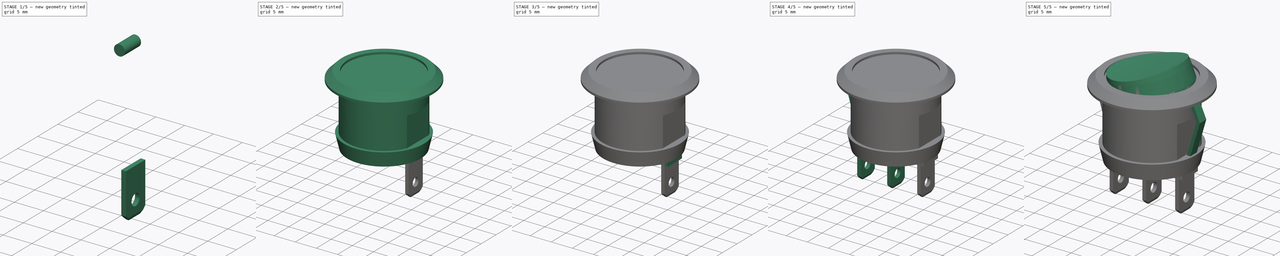
[diagram: build sequence overview — one tinted view per stage of 5, left to right]
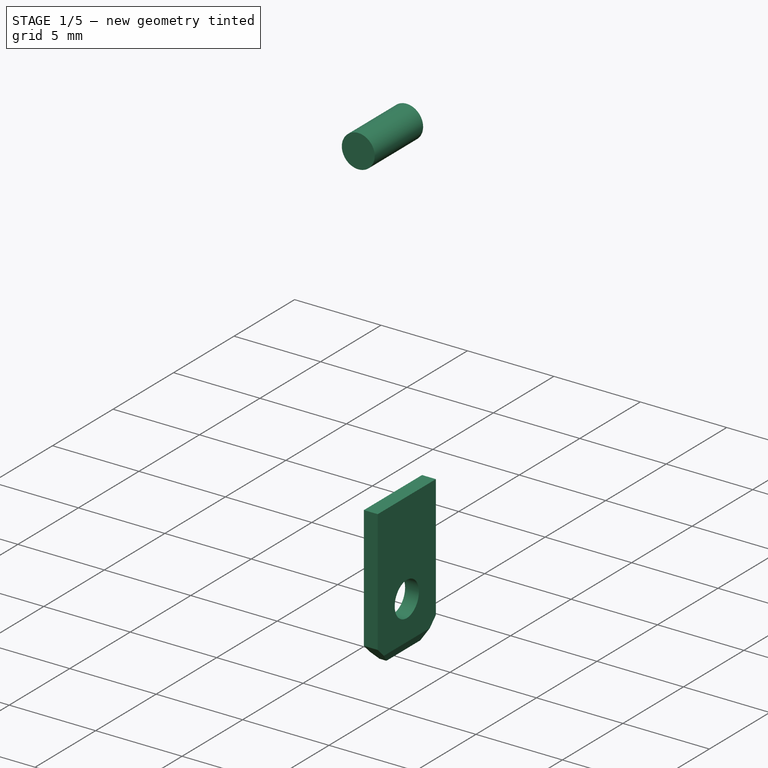
[diagram: stage 1 of 5 — iso view after this stage's code; geometry added in this stage tinted green]
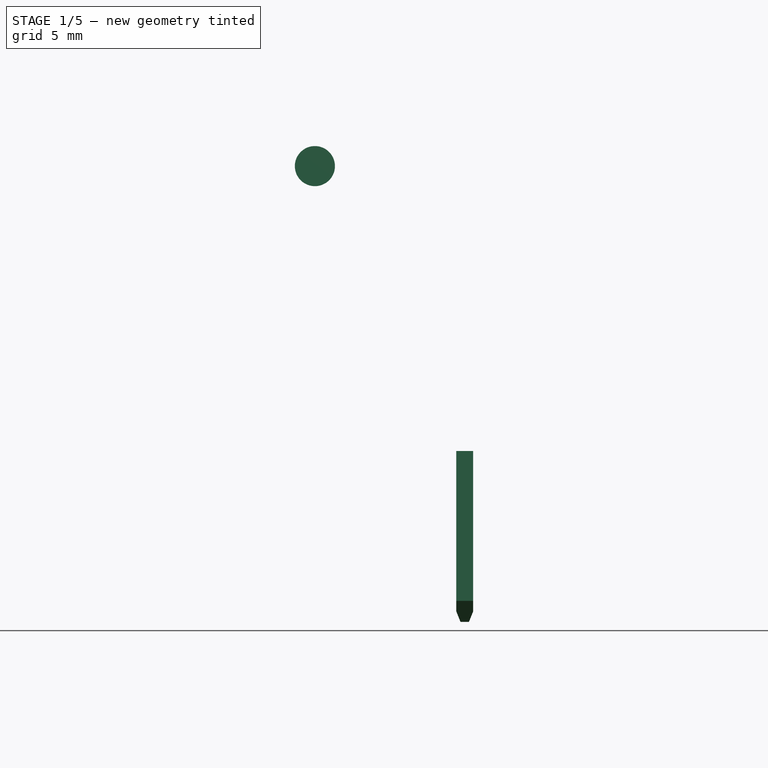
[diagram: stage 1 of 5 — front view after this stage's code; geometry added in this stage tinted green]
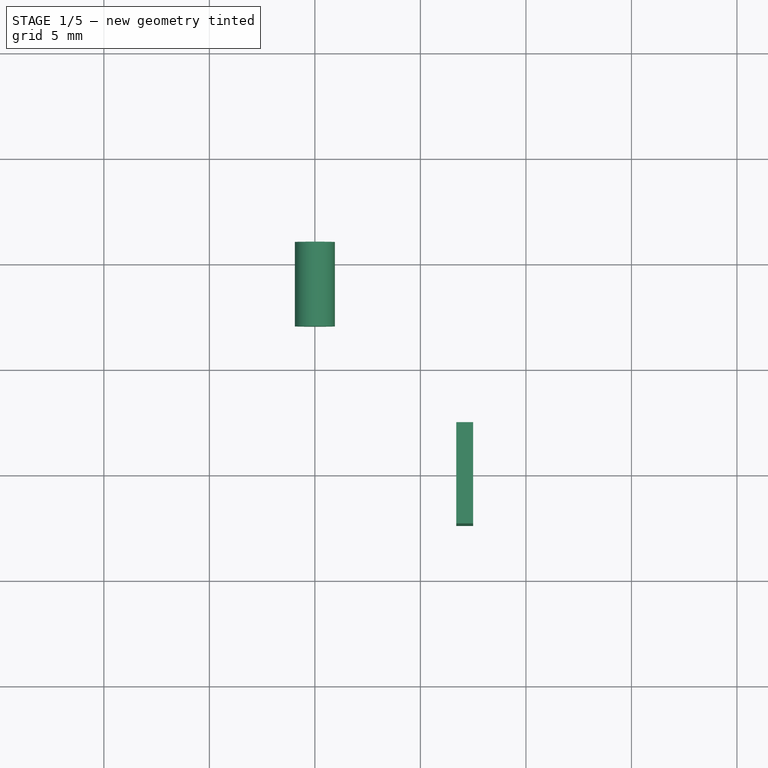
[diagram: stage 1 of 5 — top view after this stage's code; geometry added in this stage tinted green]
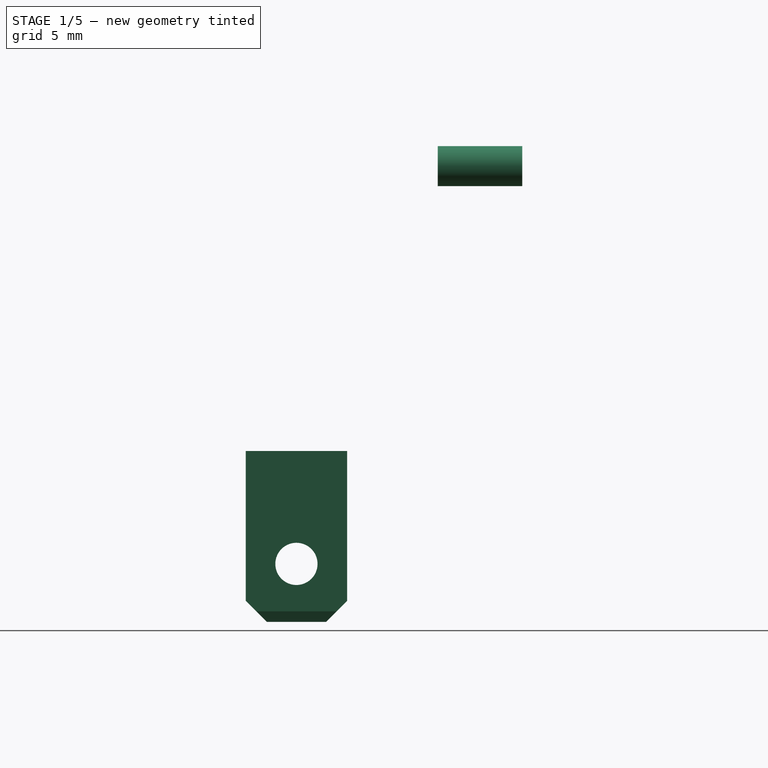
[diagram: stage 1 of 5 — right view after this stage's code; geometry added in this stage tinted green]
FCSTD DOCUMENT  (FreeCAD 0.16R6706 (Git))
Label: button
License: All rights reserved
LicenseURL: http://en.wikipedia.org/wiki/All_rights_reserved
objects: Sketcher::SketchObject×8, Part::FeaturePython×8, PartDesign::Pad×5, Image::ImagePlane×3, Part::Cut×3, PartDesign::Revolution×2, App::DocumentObjectGroup×2, Part::MultiFuse×2, Part::Feature×2, PartDesign::Pocket×1, Part::Mirroring×1, PartDesign::Chamfer×1, Part::Box×1, Part::Cylinder×1, Part::Compound×1
note: 44 computed .brp shape members not serialized (recipe doc carries the construction recipe); baked Part::Feature solids carry a one-line shape summary decoded from their .brp

FEATURE [Sketcher::SketchObject] Sketch004
  Placement = pos=(0,0,0) rot=(-1,0,0;4.71239rad)
  sketch-geometry (6):
    g0: LineSegment StartX=0.2 StartY=0 StartZ=0 EndX=0.4 EndY=0.5 EndZ=0
    g1: LineSegment StartX=0.4 StartY=0.5 StartZ=0 EndX=0.4 EndY=8.1 EndZ=0
    g2: LineSegment StartX=-0.4 StartY=8.1 StartZ=0 EndX=-0.4 EndY=0.5 EndZ=0
    g3: LineSegment StartX=0.2 StartY=0 StartZ=0 EndX=-0.2 EndY=0 EndZ=0
    g4: LineSegment StartX=-0.2 StartY=0 StartZ=0 EndX=-0.4 EndY=0.5 EndZ=0
    g5: LineSegment StartX=-0.4 StartY=8.1 StartZ=0 EndX=0.4 EndY=8.1 EndZ=0
  constraints (17):
    c: PointOnObject(g0,g-1)
    c: Coincident(g0,g1)
    c: Vertical(g1)
    c: Vertical(g2)
    c: Coincident(g0,g3)
    c: Horizontal(g3)
    c: Coincident(g3,g4)
    c: Coincident(g4,g2)
    c: Symmetric(g2,g1,g-2)
    c: Symmetric(g2,g0,g-2)
    c: Symmetric(g3,g0,g-2)
    c: DistanceX(g2,g0) = 0.8
    c: DistanceX(g3,g3) = 0.4
    c: DistanceY(g3,g2) = 0.5
    c: Coincident(g5,g2)
    c: Coincident(g5,g1)
    c: DistanceY(g2) = 8.1
FEATURE [Image::ImagePlane] ImagePlane002
  Placement = pos=(0.15,0,14) rot=(1,0,0;1.5708rad)
  XSize = 23
  YSize = 28.1
FEATURE [App::DocumentObjectGroup] Group  label="IMGsrc"
  Group = -> [ImagePlane,ImagePlane001,ImagePlane002]
FEATURE [PartDesign::Pad] Pad002
  Length = 4.8
  Length2 = 100
  Midplane = true
  Placement = pos=(0,0,0) rot=(-1,0,0;4.71239rad)
  Sketch = -> Sketch004
  Type = 0
FEATURE [Sketcher::SketchObject] Sketch006
  Placement = pos=(-0.4,0,0) rot=(0.707107,0,-0.707107;3.14159rad)
  Support = -> Pad002 [Face5]
  sketch-geometry (1):
    g0: Circle CenterX=-2.75 CenterY=0 CenterZ=0 NormalX=0 NormalY=0 NormalZ=1 Radius=1
  constraints (3):
    c: PointOnObject(g0,g-1)
    c: Radius(g0) = 1
    c: DistanceX(g0,g-1) = 2.75
FEATURE [PartDesign::Pocket] Pocket
  Length = 5
  Placement = pos=(0,0,0) rot=(-1,0,0;4.71239rad)
  Sketch = -> Sketch006
  Type = 0
FEATURE [PartDesign::Chamfer] Chamfer001  label="switchPin"
  Base = -> Pocket [Edge4,Edge3]
  Placement = pos=(0,0,0) rot=(-1,0,0;4.71239rad)
  Size = 1
FEATURE [Part::Cylinder] Cylinder
  Angle = 360
  Height = 4
  Placement = pos=(0,10.7,13.5) rot=(1,0,0;1.5708rad)
  Radius = 0.95
FEATURE [Part::FeaturePython] Clone011  label="Clone of switchPin001"  # Draft clone (typed FeaturePython)
  Objects = -> [Chamfer001]
  Placement = pos=(7.1,0,-8.1) rot=(-1,0,0;4.71239rad)
  Scale = (1,1,1)
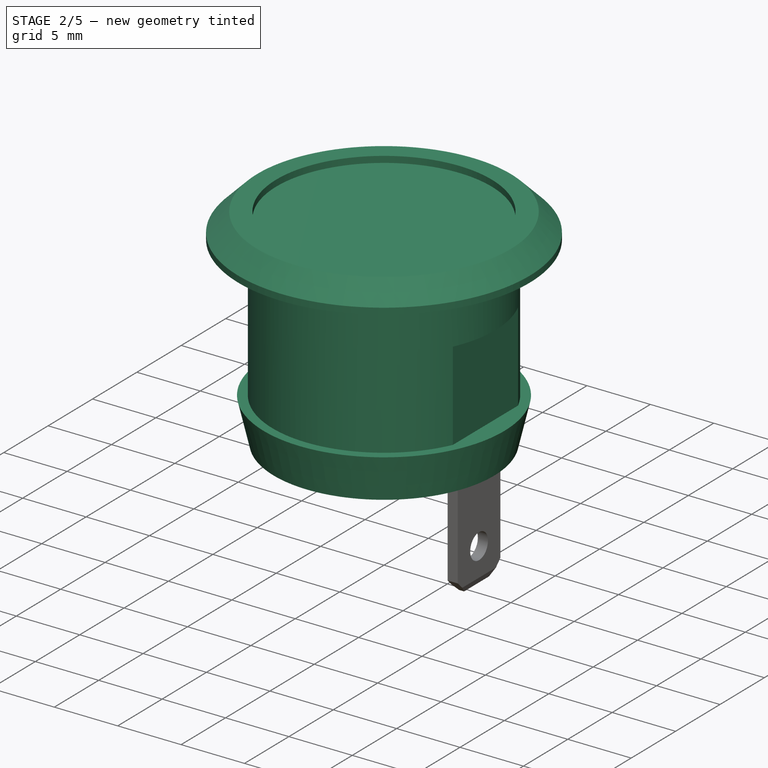
[diagram: stage 2 of 5 — iso view after this stage's code; geometry added in this stage tinted green]
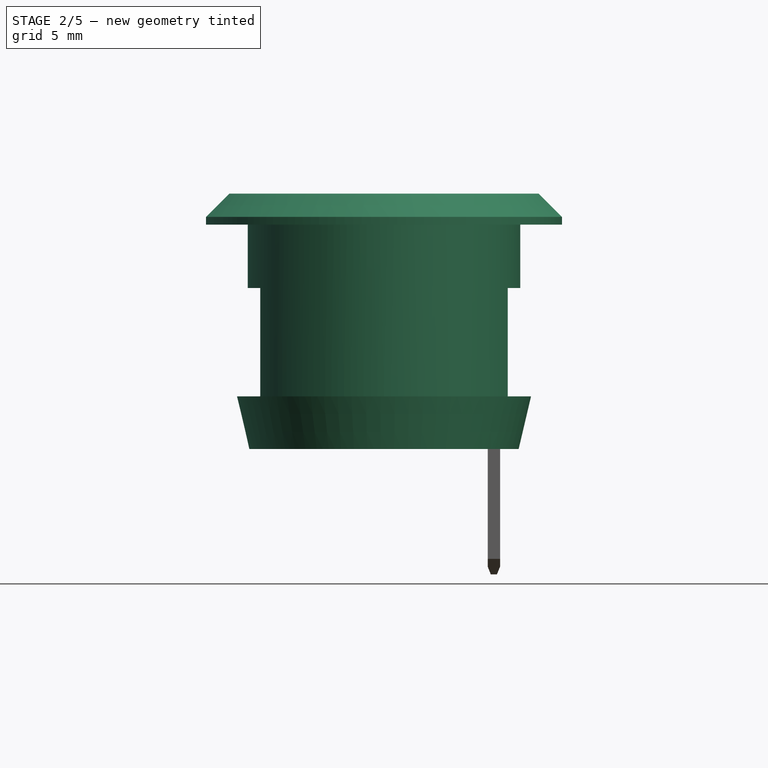
[diagram: stage 2 of 5 — front view after this stage's code; geometry added in this stage tinted green]
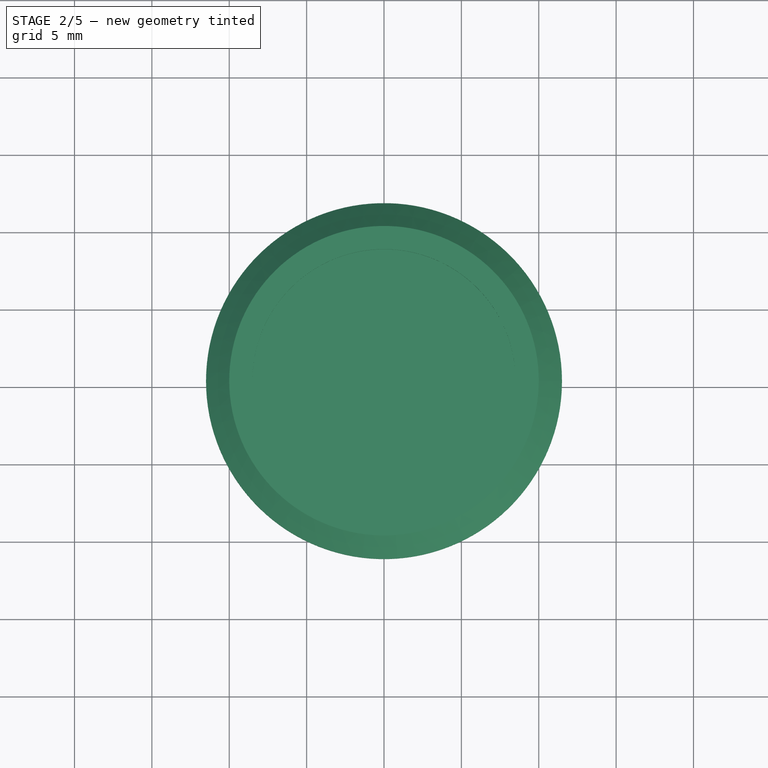
[diagram: stage 2 of 5 — top view after this stage's code; geometry added in this stage tinted green]
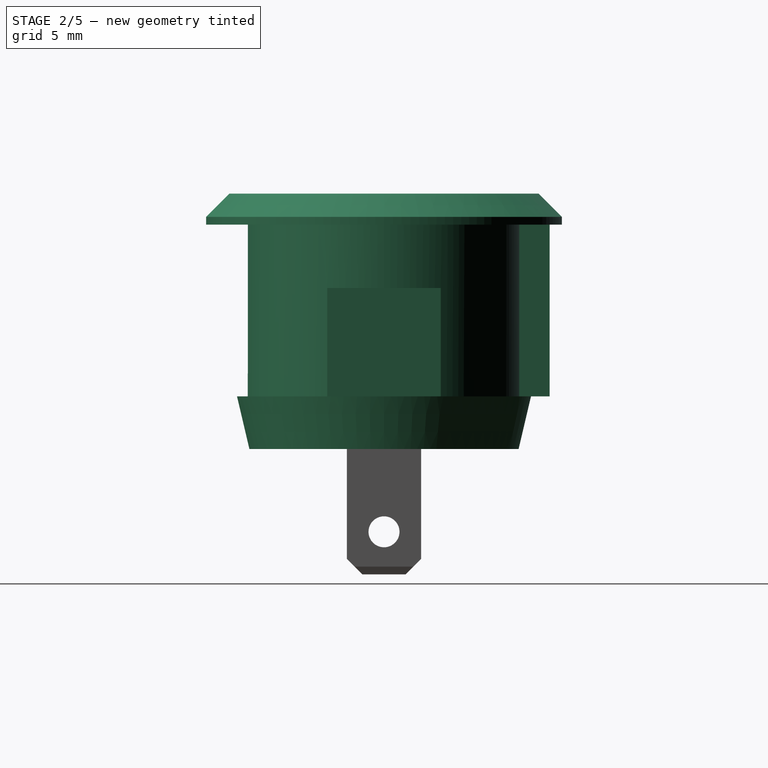
[diagram: stage 2 of 5 — right view after this stage's code; geometry added in this stage tinted green]
FEATURE [Sketcher::SketchObject] Sketch
  Placement = pos=(0,0,0) rot=(-1,0,0;4.71239rad)
  sketch-geometry (11):
    g0: LineSegment StartX=0 StartY=0 StartZ=0 EndX=8.7 EndY=0 EndZ=0
    g1: LineSegment StartX=8.7 StartY=0 StartZ=0 EndX=9.5 EndY=3.4 EndZ=0
    g2: LineSegment StartX=9.5 StartY=3.4 StartZ=0 EndX=8.8 EndY=3.4 EndZ=0
    g3: LineSegment StartX=8.8 StartY=3.4 StartZ=0 EndX=8.8 EndY=14.5 EndZ=0
    g4: LineSegment StartX=8.8 StartY=14.5 StartZ=0 EndX=11.5 EndY=14.5 EndZ=0
    g5: LineSegment StartX=11.5 StartY=14.5 StartZ=0 EndX=11.5 EndY=15 EndZ=0
    g6: LineSegment StartX=11.5 StartY=15 StartZ=0 EndX=10 EndY=16.5 EndZ=0
    g7: LineSegment StartX=0 StartY=16 StartZ=0 EndX=0 EndY=0 EndZ=0
    g8: LineSegment StartX=0 StartY=16 StartZ=0 EndX=8.5 EndY=16 EndZ=0
    g9: LineSegment StartX=8.5 StartY=16 StartZ=0 EndX=8.5 EndY=16.5 EndZ=0
    g10: LineSegment StartX=8.5 StartY=16.5 StartZ=0 EndX=10 EndY=16.5 EndZ=0
  constraints (32):
    c: Coincident(g-1,g0)
    c: Horizontal(g0)
    c: Coincident(g0,g1)
    c: Coincident(g1,g2)
    c: Horizontal(g2)
    c: Vertical(g3)
    c: Coincident(g3,g4)
    c: Horizontal(g4)
    c: Coincident(g4,g5)
    c: Vertical(g5)
    c: Coincident(g5,g6)
    c: Coincident(g7,g0)
    c: Vertical(g7)
    c: DistanceX(g7,g5) = 11.5
    c: DistanceY(g4,g6) = 2
    c: DistanceY(g5,g5) = 0.5
    c: DistanceX(g0,g0) = 8.7
    c: DistanceY(g0,g4) = 14.5
    c: DistanceX(g-1,g1) = 9.5
    c: DistanceY(g0,g1) = 3.4
    c: Coincident(g7,g8)
    c: Horizontal(g8)
    c: Coincident(g8,g9)
    c: Vertical(g9)
    c: Coincident(g9,g10)
    c: Coincident(g10,g6)
    c: Horizontal(g10)
    c: DistanceX(g10,g10) = 1.5
    c: DistanceX(g8,g8) = 8.5
    c: DistanceY(g7,g7) = 16
    c: Coincident(g3,g2)
    c: DistanceX(g-1,g3) = 8.8
FEATURE [PartDesign::Revolution] Revolution
  Angle = 360
  Axis = (0,0,1)
  Base = (0,0,0)
  Placement = pos=(0,0,0) rot=(-1,0,0;4.71239rad)
  ReferenceAxis = -> Sketch [V_Axis]
  Reversed = true
  Sketch = -> Sketch
FEATURE [Sketcher::SketchObject] Sketch008
  Placement = pos=(0,0,0) rot=(-1,0,0;4.71239rad)
  sketch-geometry (8):
    g0: LineSegment StartX=10 StartY=10.4 StartZ=0 EndX=8 EndY=10.4 EndZ=0
    g1: LineSegment StartX=8 StartY=10.4 StartZ=0 EndX=8 EndY=3.4 EndZ=0
    g2: LineSegment StartX=8 StartY=3.4 StartZ=0 EndX=10 EndY=3.4 EndZ=0
    g3: LineSegment StartX=10 StartY=3.4 StartZ=0 EndX=10 EndY=10.4 EndZ=0
    g4: LineSegment StartX=-8 StartY=10.4 StartZ=0 EndX=-10 EndY=10.4 EndZ=0
    g5: LineSegment StartX=-10 StartY=10.4 StartZ=0 EndX=-10 EndY=3.4 EndZ=0
    g6: LineSegment StartX=-10 StartY=3.4 StartZ=0 EndX=-8 EndY=3.4 EndZ=0
    g7: LineSegment StartX=-8 StartY=3.4 StartZ=0 EndX=-8 EndY=10.4 EndZ=0
  constraints (22):
    c: Coincident(g0,g1)
    c: Coincident(g1,g2)
    c: Coincident(g2,g3)
    c: Coincident(g3,g0)
    c: Horizontal(g0)
    c: Horizontal(g2)
    c: Vertical(g1)
    c: Vertical(g3)
    c: DistanceY(g-1,g2) = 3.4
    c: DistanceX(g-1,g1) = 8
    c: DistanceY(g1,g1) = 7
    c: DistanceX(g0,g0) = 2
    c: Coincident(g4,g5)
    c: Coincident(g5,g6)
    c: Coincident(g6,g7)
    c: Coincident(g7,g4)
    c: Horizontal(g4)
    c: Horizontal(g6)
    c: Vertical(g5)
    c: Vertical(g7)
    c: Symmetric(g6,g1,g-2)
    c: Symmetric(g4,g0,g-2)
FEATURE [PartDesign::Pad] Pad004
  Length = 10
  Length2 = 100
  Midplane = true
  Placement = pos=(0,0,0) rot=(-1,0,0;4.71239rad)
  Sketch = -> Sketch008
  Type = 0
FEATURE [Part::Cut] Cut001
  Base = -> Revolution
  Tool = -> Pad004
FEATURE [Part::Box] Box  label="Cube"
  Height = 12
  Length = 2
  Placement = pos=(-1,0.7,3.4) rot=(0,0,1;0rad)
  Width = 10
FEATURE [Part::MultiFuse] Fusion
  Shapes = -> [Cut001,Box]
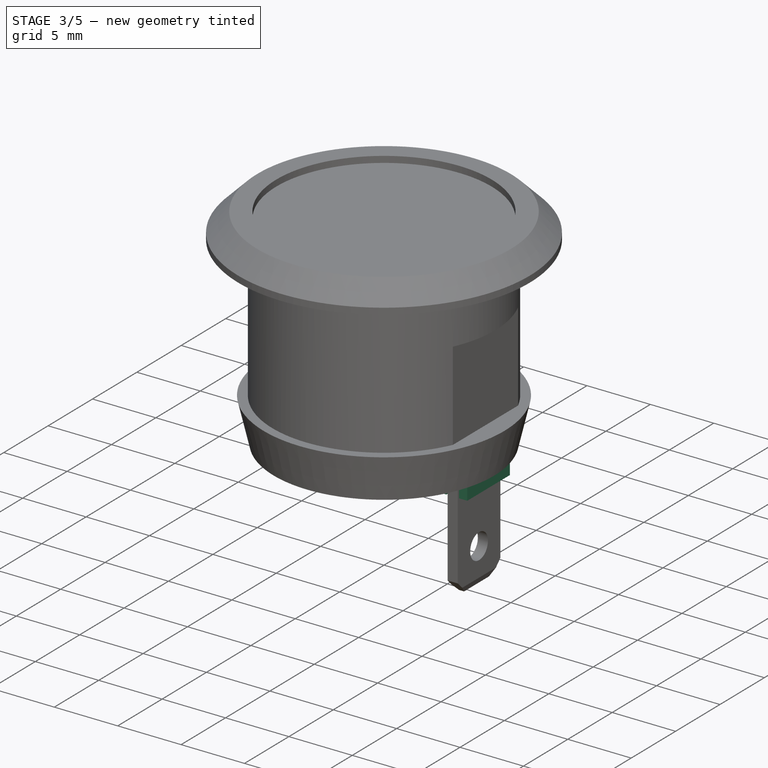
[diagram: stage 3 of 5 — iso view after this stage's code; geometry added in this stage tinted green]
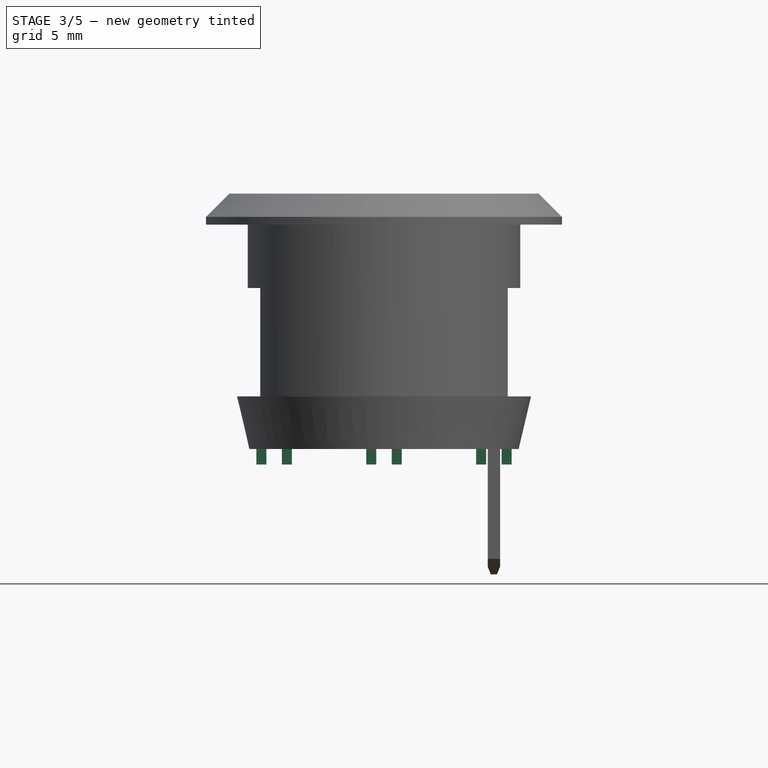
[diagram: stage 3 of 5 — front view after this stage's code; geometry added in this stage tinted green]
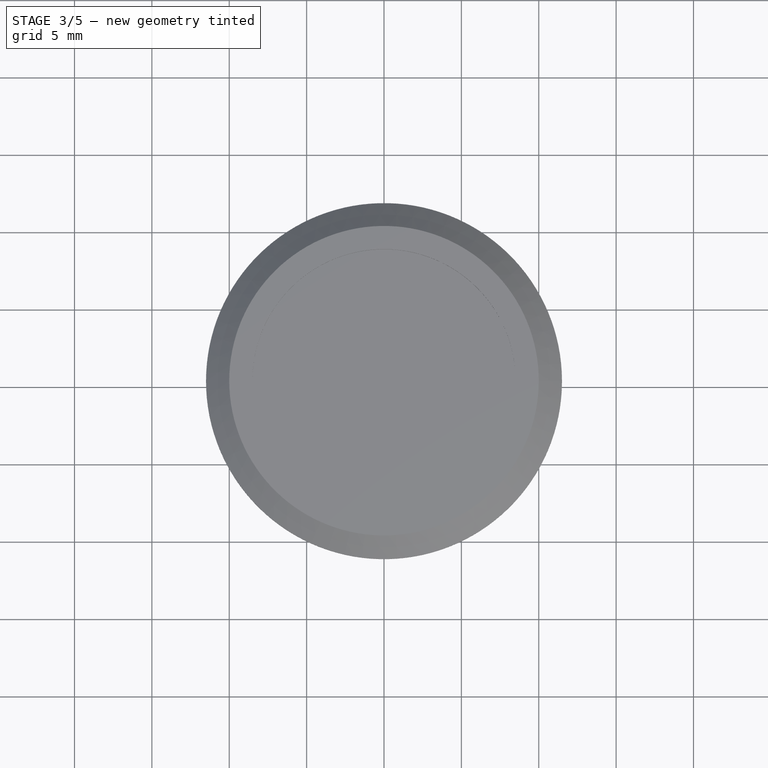
[diagram: stage 3 of 5 — top view after this stage's code; geometry added in this stage tinted green]
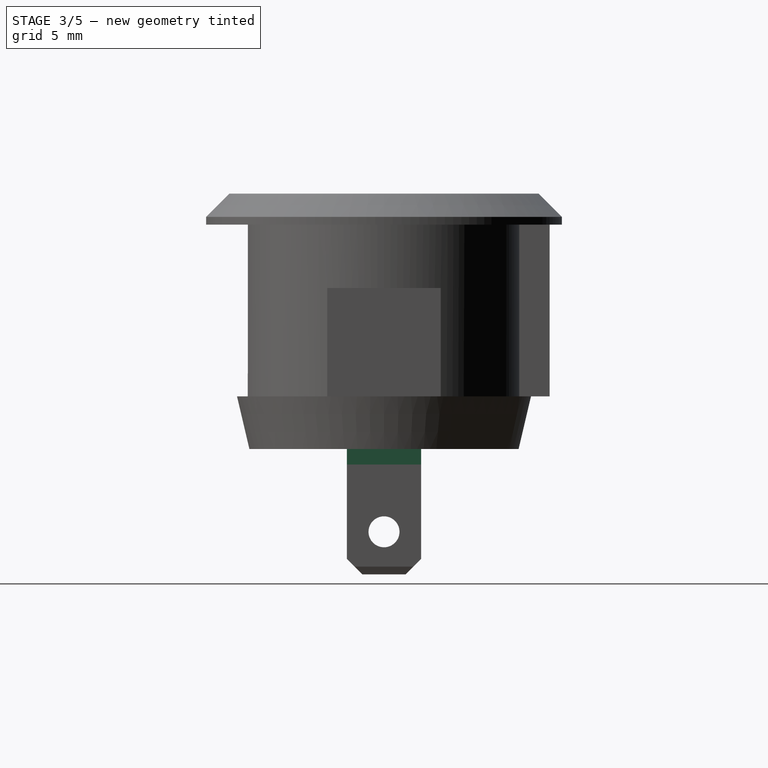
[diagram: stage 3 of 5 — right view after this stage's code; geometry added in this stage tinted green]
FEATURE [Sketcher::SketchObject] Sketch007
  Placement = pos=(0,0,0) rot=(-1,0,0;4.71239rad)
  sketch-geometry (8):
    g0: LineSegment StartX=-1.15 StartY=0 StartZ=0 EndX=-0.5 EndY=0 EndZ=0
    g1: LineSegment StartX=-0.5 StartY=0 StartZ=0 EndX=-0.5 EndY=-1 EndZ=0
    g2: LineSegment StartX=-0.5 StartY=-1 StartZ=0 EndX=-1.15 EndY=-1 EndZ=0
    g3: LineSegment StartX=-1.15 StartY=-1 StartZ=0 EndX=-1.15 EndY=0 EndZ=0
    g4: LineSegment StartX=0.5 StartY=0 StartZ=0 EndX=1.15 EndY=0 EndZ=0
    g5: LineSegment StartX=1.15 StartY=0 StartZ=0 EndX=1.15 EndY=-1 EndZ=0
    g6: LineSegment StartX=1.15 StartY=-1 StartZ=0 EndX=0.5 EndY=-1 EndZ=0
    g7: LineSegment StartX=0.5 StartY=-1 StartZ=0 EndX=0.5 EndY=0 EndZ=0
  constraints (23):
    c: Coincident(g0,g1)
    c: Coincident(g1,g2)
    c: Coincident(g2,g3)
    c: Coincident(g3,g0)
    c: Horizontal(g0)
    c: Horizontal(g2)
    c: Vertical(g1)
    c: Vertical(g3)
    c: PointOnObject(g0,g-1)
    c: DistanceX(g0,g-1) = 0.5
    c: DistanceY(g3,g3) = 1
    c: DistanceX(g0,g0) = 0.65
    c: Coincident(g4,g5)
    c: Coincident(g5,g6)
    c: Coincident(g6,g7)
    c: Coincident(g7,g4)
    c: Horizontal(g4)
    c: Horizontal(g6)
    c: Vertical(g5)
    c: Vertical(g7)
    c: PointOnObject(g4,g-1)
    c: Symmetric(g4,g0,g-2)
    c: Symmetric(g5,g2,g-2)
FEATURE [PartDesign::Pad] Pad003
  Length = 4.8
  Length2 = 100
  Midplane = true
  Placement = pos=(0,0,0) rot=(-1,0,0;4.71239rad)
  Sketch = -> Sketch007
  Type = 0
FEATURE [Part::FeaturePython] Clone004  label="Clone of Pad003"  # Draft clone (typed FeaturePython)
  Objects = -> [Pad003]
  Placement = pos=(-7.1,0,0) rot=(-1,0,0;4.71239rad)
  Scale = (1,1,1)
FEATURE [Part::FeaturePython] Clone005  label="Clone of Pad004"  # Draft clone (typed FeaturePython)
  Objects = -> [Pad003]
  Placement = pos=(7.1,0,0) rot=(-1,0,0;4.71239rad)
  Scale = (1,1,1)
FEATURE [Part::Cut] Cut002
  Base = -> Fusion
  Tool = -> Cylinder
FEATURE [Part::MultiFuse] Fusion001  label="switchBody"
  Shapes = -> [Pad003,Cut002,Clone005,Clone004]
FEATURE [Part::FeaturePython] Clone010  label="Clone of switchBody"  # Draft clone (typed FeaturePython)
  Objects = -> [Fusion001]
  Scale = (1,1,1)
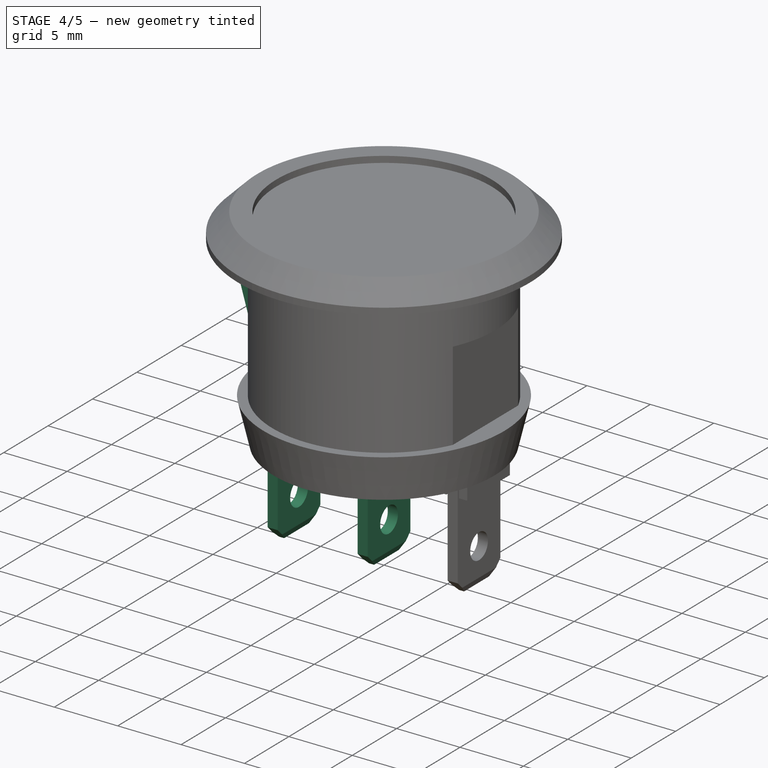
[diagram: stage 4 of 5 — iso view after this stage's code; geometry added in this stage tinted green]
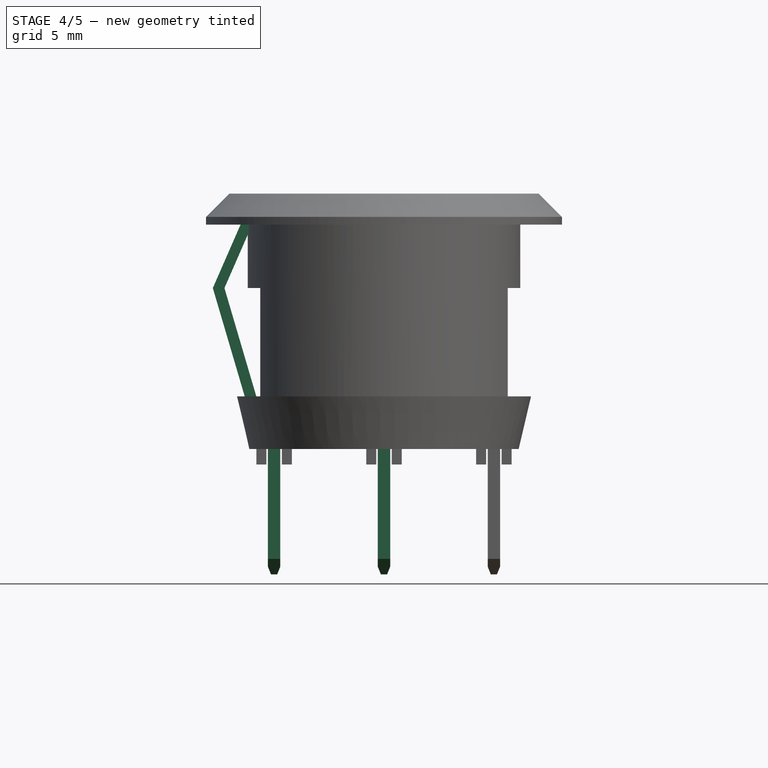
[diagram: stage 4 of 5 — front view after this stage's code; geometry added in this stage tinted green]
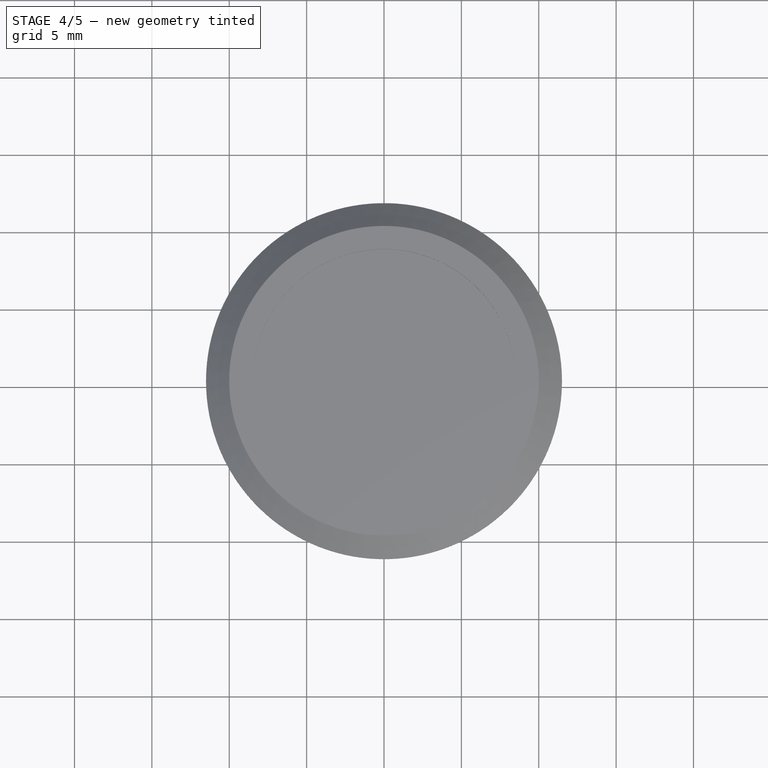
[diagram: stage 4 of 5 — top view after this stage's code; geometry added in this stage tinted green]
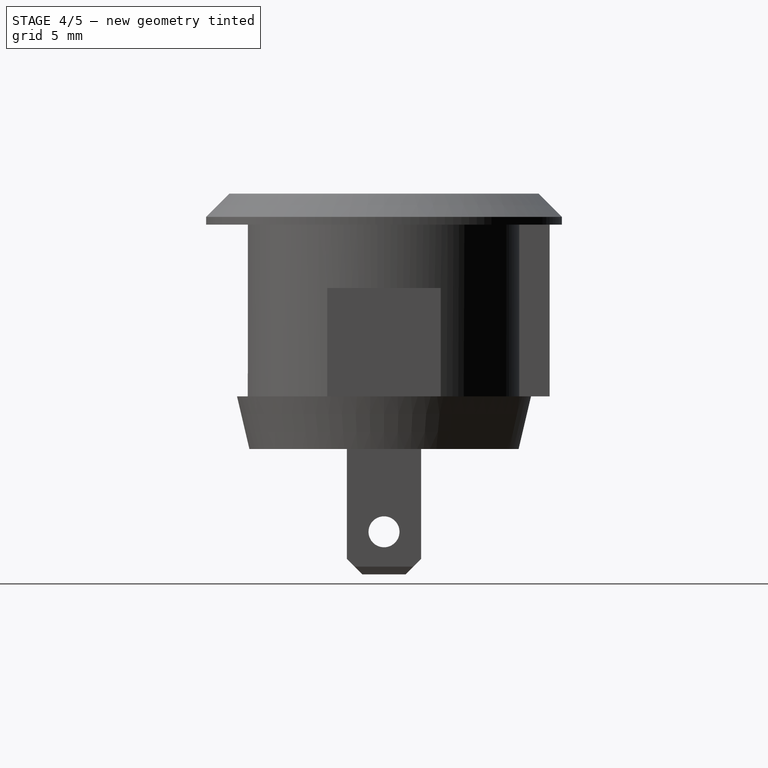
[diagram: stage 4 of 5 — right view after this stage's code; geometry added in this stage tinted green]
FEATURE [Image::ImagePlane] ImagePlane
  Placement = pos=(0,0,6) rot=(1,0,0;1.5708rad)
  XSize = 23
  YSize = 28.1
FEATURE [Sketcher::SketchObject] Sketch001
  Placement = pos=(0,0,0) rot=(-1,0,0;4.71239rad)
  sketch-geometry (6):
    g0: LineSegment StartX=8.25 StartY=3.4 StartZ=0 EndX=10.3099 EndY=10.4 EndZ=0
    g1: LineSegment StartX=10.3099 StartY=10.4 StartZ=0 EndX=8.3 EndY=15 EndZ=0
    g2: LineSegment StartX=8.3 StartY=15 StartZ=0 EndX=9.05 EndY=15 EndZ=0
    g3: LineSegment StartX=9.05 StartY=15 StartZ=0 EndX=11.0599 EndY=10.4 EndZ=0
    g4: LineSegment StartX=11.0599 StartY=10.4 StartZ=0 EndX=9 EndY=3.4 EndZ=0
    g5: LineSegment StartX=9 StartY=3.4 StartZ=0 EndX=8.25 EndY=3.4 EndZ=0
  constraints (18):
    c: Coincident(g0,g1)
    c: Coincident(g1,g2)
    c: Coincident(g2,g3)
    c: Coincident(g3,g4)
    c: Coincident(g4,g5)
    c: Coincident(g5,g0)
    c: Parallel(g0,g4)
    c: Parallel(g1,g3)
    c: Horizontal(g2)
    c: DistanceY(g0,g3) = 0
    c: DistanceX(g0,g3) = 0.75
    c: Horizontal(g5)
    c: DistanceY(g-1,g0) = 3.4
    c: DistanceY(g-1,g1) = 15
    c: Angle(g1,g0) = 2.44346
    c: DistanceX(g-1,g4) = 9
    c: DistanceX(g-1,g1) = 8.3
    c: DistanceY(g-1,g0) = 10.4
FEATURE [PartDesign::Pad] Pad  label="switchFix"
  Length = 2
  Length2 = 100
  Midplane = true
  Placement = pos=(0,0,0) rot=(-1,0,0;4.71239rad)
  Sketch = -> Sketch001
  Type = 0
FEATURE [Part::FeaturePython] Clone  label="Clone of switchFix"  # Draft clone (typed FeaturePython)
  Objects = -> [Pad]
  Placement = pos=(0,0,0) rot=(-1,0,0;4.71239rad)
  Scale = (1,1,1)
FEATURE [Part::Mirroring] Part__Mirroring  label="Clone of switchFix (Mirror #1)"
  Base = (0,0,0)
  Normal = (1,0,0)
  Source = -> Clone
FEATURE [Part::FeaturePython] Clone006  label="Clone of switchPin"  # Draft clone (typed FeaturePython)
  Objects = -> [Chamfer001]
  Placement = pos=(-7.1,0,-8.1) rot=(-1,0,0;4.71239rad)
  Scale = (1,1,1)
FEATURE [Part::FeaturePython] Clone008  label="Clone of switchPin002"  # Draft clone (typed FeaturePython)
  Objects = -> [Chamfer001]
  Placement = pos=(0,0,-8.1) rot=(-1,0,0;4.71239rad)
  Scale = (1,1,1)
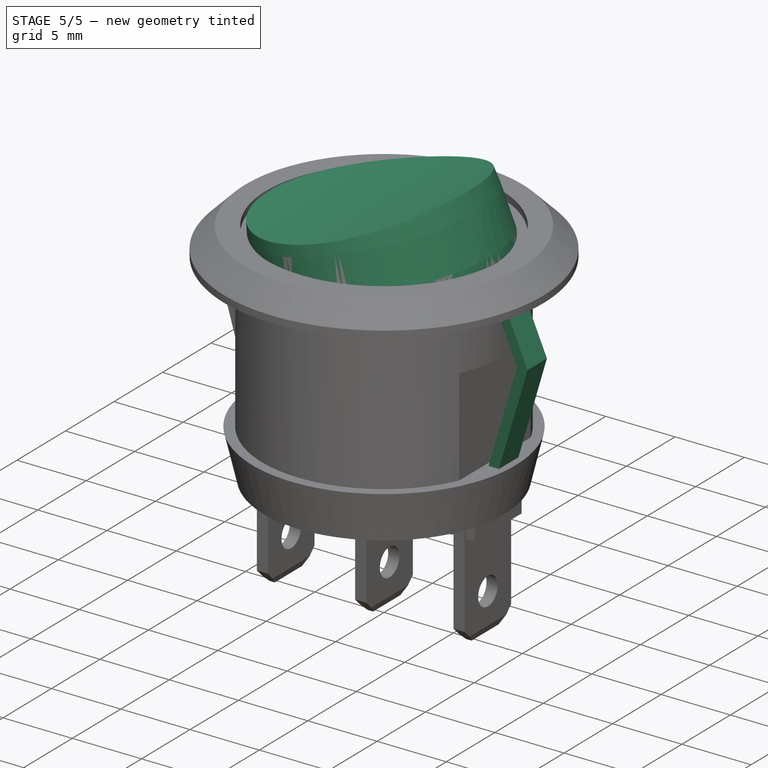
[diagram: stage 5 of 5 — iso view after this stage's code; geometry added in this stage tinted green]
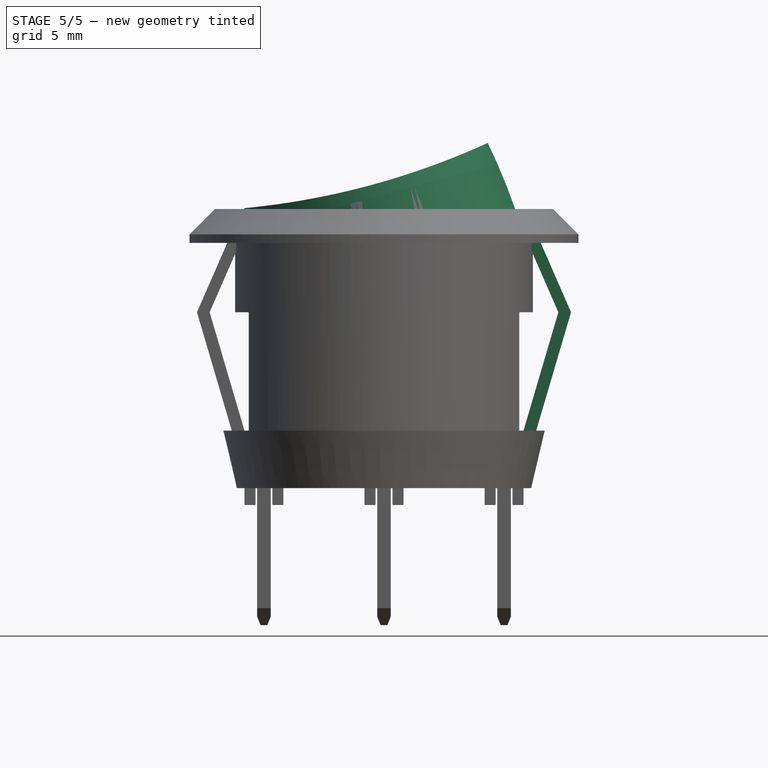
[diagram: stage 5 of 5 — front view after this stage's code; geometry added in this stage tinted green]
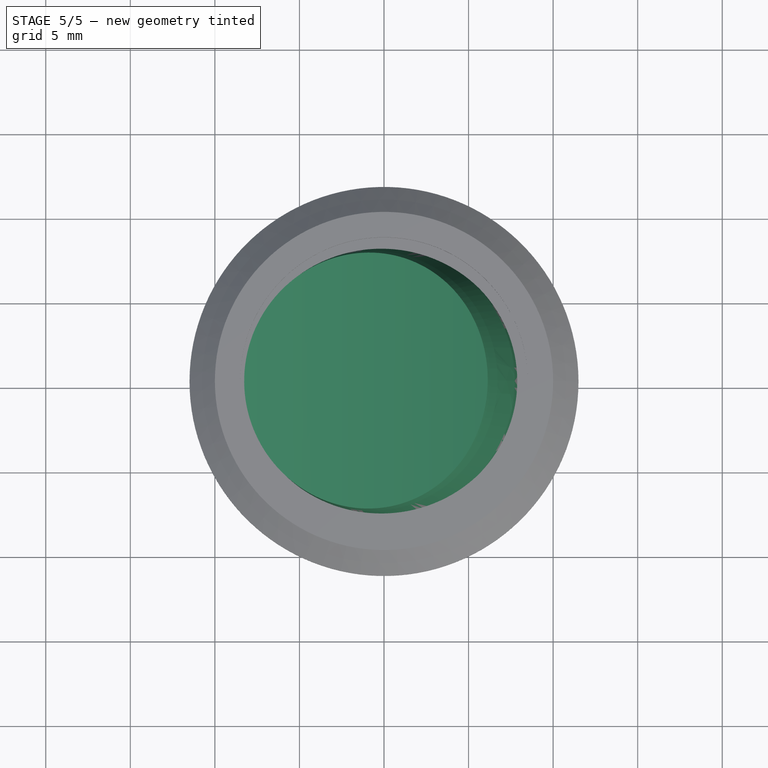
[diagram: stage 5 of 5 — top view after this stage's code; geometry added in this stage tinted green]
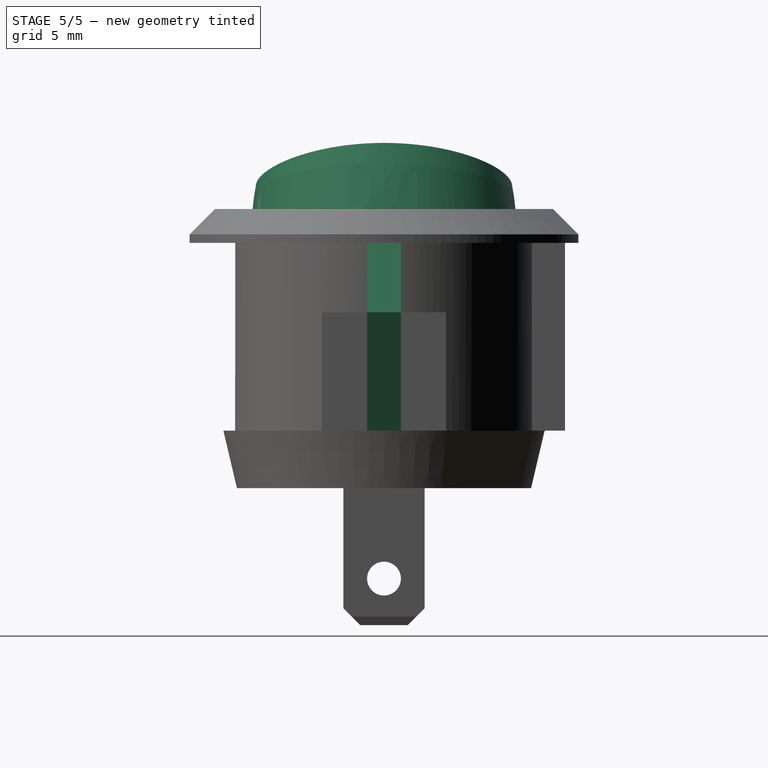
[diagram: stage 5 of 5 — right view after this stage's code; geometry added in this stage tinted green]
FEATURE [Image::ImagePlane] ImagePlane001
  Placement = pos=(-3.18407,0,-8.06212) rot=(0.97712,0.150393,-0.150393;1.59394rad)
  XSize = 23
  YSize = 28.1
FEATURE [Sketcher::SketchObject] Sketch002
  Placement = pos=(0,0,0) rot=(-1,0,0;4.71239rad)
  sketch-geometry (5):
    g0: ArcOfCircle CenterX=-26.7955 CenterY=-2.5 CenterZ=0 NormalX=0 NormalY=0 NormalZ=1 Radius=34.8851 StartAngle=0.0717252 EndAngle=0.191799
    g1: LineSegment StartX=8 StartY=-1 StartZ=0 EndX=0 EndY=-1 EndZ=0
    g2: LineSegment StartX=0 StartY=-1 StartZ=0 EndX=0 EndY=4.15 EndZ=0
    g3: LineSegment StartX=0 StartY=4.15 StartZ=0 EndX=7.45 EndY=4.15 EndZ=0
    g4: LineSegment StartX=8 StartY=0 StartZ=0 EndX=8 EndY=-1 EndZ=0
  constraints (16):
    c: DistanceX(g-1,g0) = 8
    c: DistanceY(g0,g-1) = 2.5
    c: DistanceY(g-1,g0) = 4.15
    c: Vertical(g2)
    c: Coincident(g2,g3)
    c: Coincident(g3,g0)
    c: Horizontal(g3)
    c: Horizontal(g1)
    c: DistanceX(g3,g3) = 7.45
    c: Coincident(g1,g2)
    c: PointOnObject(g0,g-1)
    c: PointOnObject(g2,g-2)
    c: Coincident(g4,g0)
    c: Coincident(g4,g1)
    c: Vertical(g4)
    c: DistanceY(g4,g4) = 1
FEATURE [PartDesign::Revolution] Revolution001
  Angle = 360
  Axis = (0,0,1)
  Base = (0,0,0)
  Placement = pos=(0,0,0) rot=(-1,0,0;4.71239rad)
  ReferenceAxis = -> Sketch002 [V_Axis]
  Reversed = true
  Sketch = -> Sketch002
FEATURE [Sketcher::SketchObject] Sketch003
  Placement = pos=(0,0,0) rot=(-1,0,0;4.71239rad)
  sketch-geometry (1):
    g0: Circle CenterX=0 CenterY=48.5 CenterZ=0 NormalX=0 NormalY=0 NormalZ=1 Radius=45
  constraints (3):
    c: Radius(g0) = 45
    c: PointOnObject(g0,g-2)
    c: DistanceY(g-1,g0) = 48.5
FEATURE [PartDesign::Pad] Pad001
  Length = 20
  Length2 = 100
  Midplane = true
  Placement = pos=(0,0,0) rot=(-1,0,0;4.71239rad)
  Reversed = true
  Sketch = -> Sketch003
  Type = 0
FEATURE [Part::Cut] Cut  label="switchButton"
  Base = -> Revolution001
  Tool = -> Pad001
FEATURE [Part::FeaturePython] Clone002  label="Clone of switchButton"  # Draft clone (typed FeaturePython)
  Objects = -> [Cut]
  Placement = pos=(0,0,14.5) rot=(0,-1,0;0.261799rad)
  Scale = (1,1,1)
FEATURE [Part::Feature] Compound001  label="Switch2Pins"
  shape: bbox 23 x 23 x 28.51 mm, 92 faces, 6 solids (baked)
FEATURE [Part::Compound] Compound  label="Switch"
  Links = -> [Clone011,Clone010,Part__Mirroring,Clone002,Clone006,Clone008,Clone]
FEATURE [App::DocumentObjectGroup] Group001  label="Master"
  Group = -> [Pad,Cut,Pad002,Pocket,Group,Chamfer001,Fusion001,Compound]
FEATURE [Part::Feature] Compound002  label="Switch3Pins"
  shape: bbox 23 x 23 x 28.51 mm, 103 faces, 7 solids (baked)
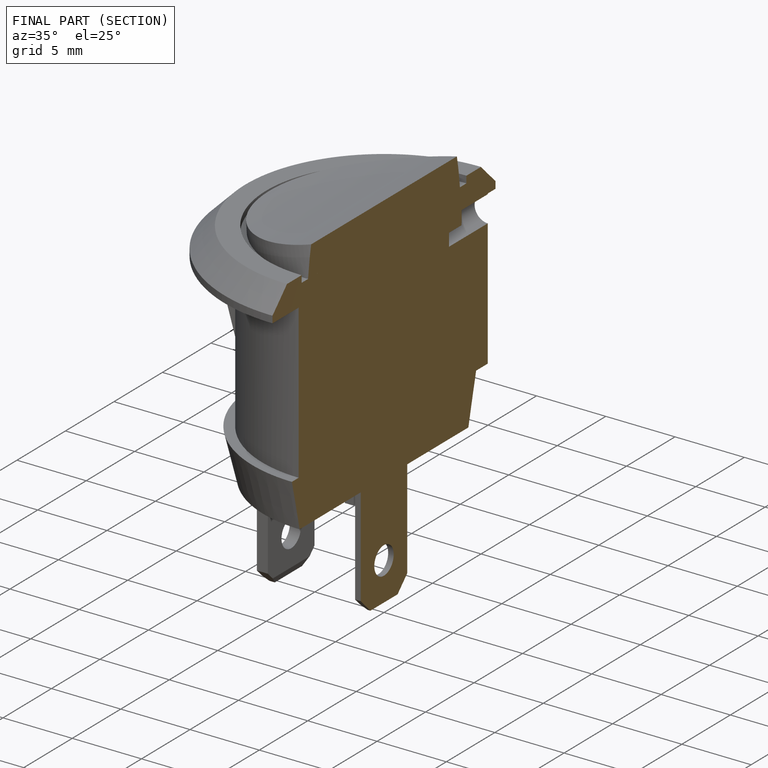
[diagram: finished part — half-section view (interior)]
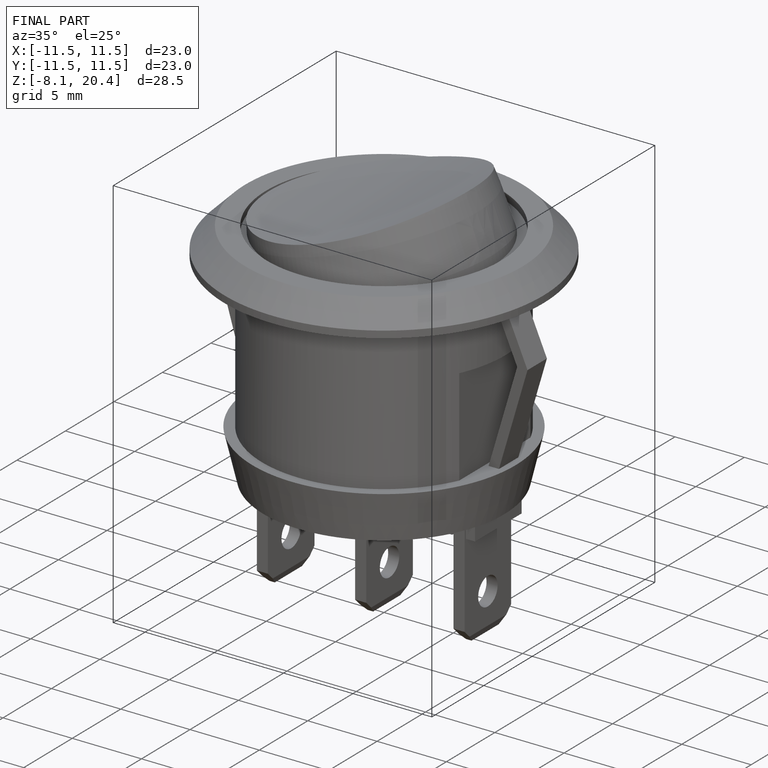
[diagram: finished part — iso view with bounding-box wireframe]
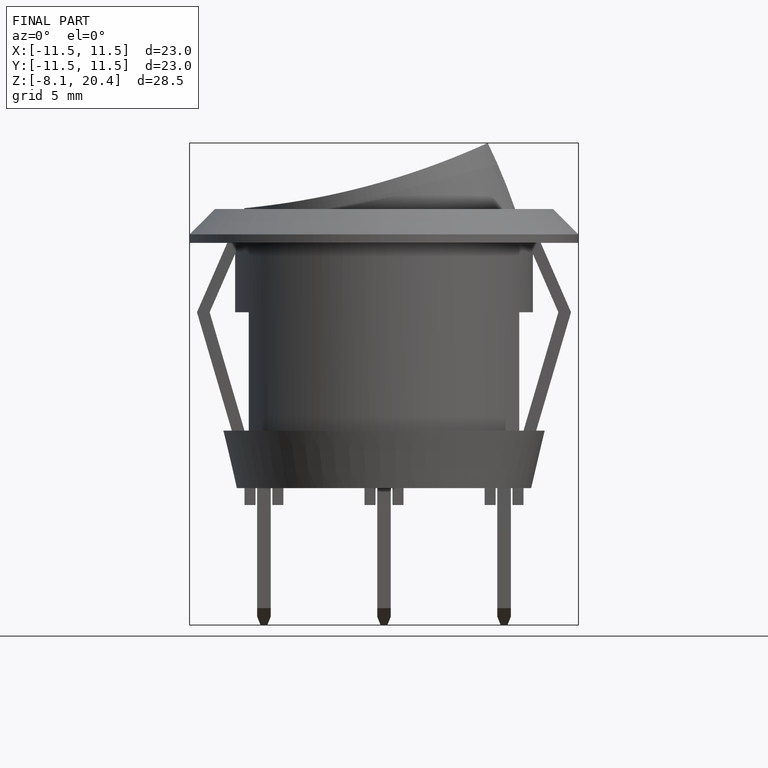
[diagram: finished part — front view with bounding-box wireframe]
